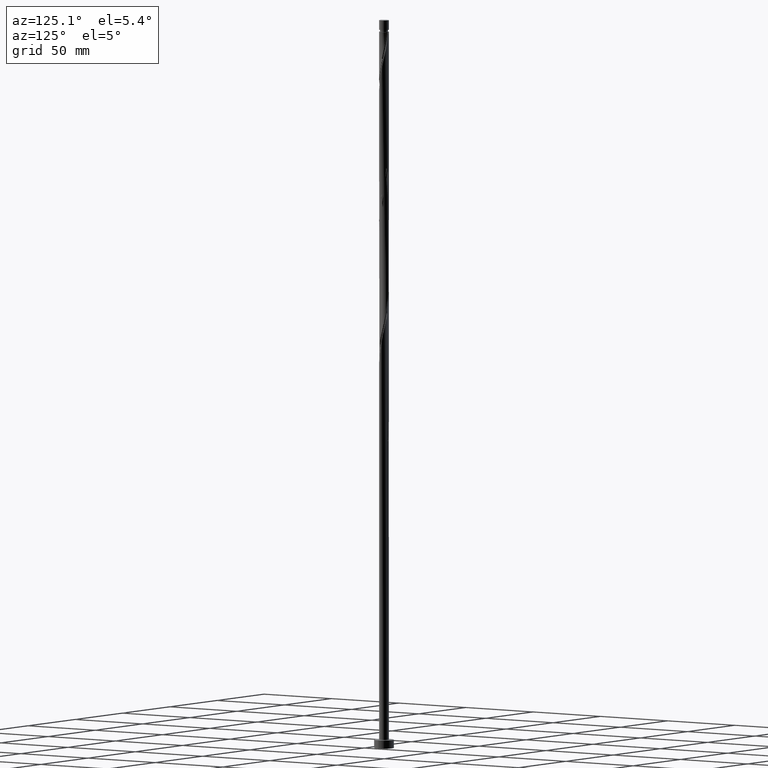
[diagram: clean part render]
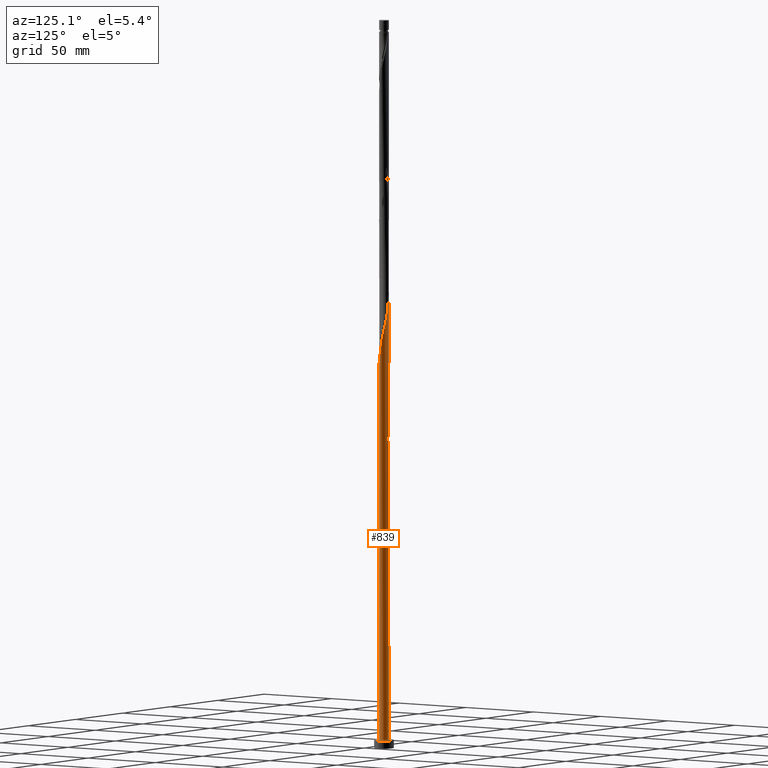
[diagram: same view with one face highlighted and labeled with its STEP entity id]
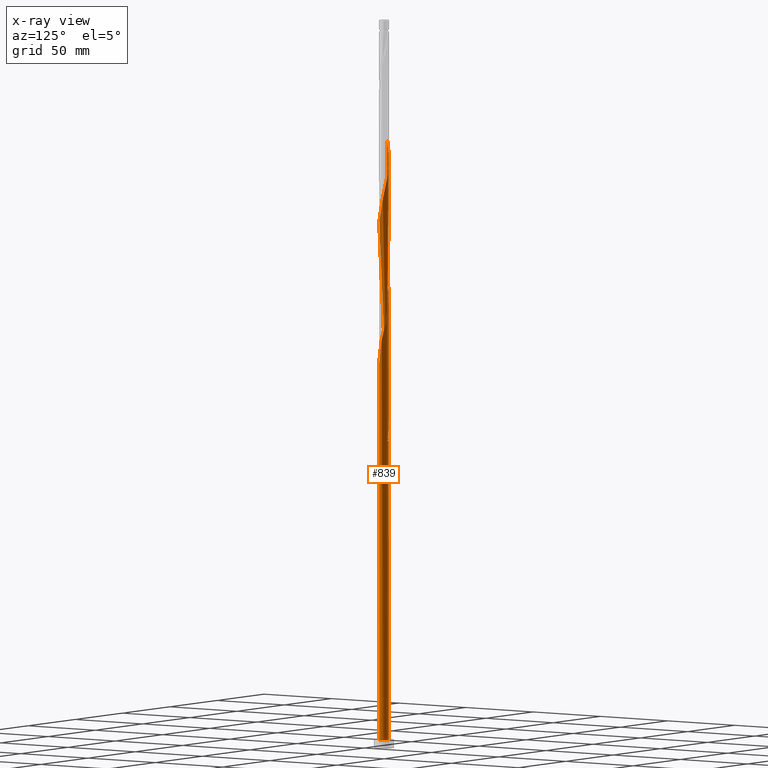
[diagram: x-ray of the same camera — body ghosted, the highlighted face saturated]
A machine part, auxiliary view. The second image highlights one B-rep face of the part: STEP entity #839.
The next image is the same camera in x-ray: the body ghosted, the highlighted face saturated — about 0% of this face is hidden behind the body in this view.
In plain terms, the highlighted cylindrical surface (bore or boss wall) has radius 3 mm, axis along (-0, -0, -1).
Its self-contained STEP definition (entity closure, byte-faithful):
#5 = CARTESIAN_POINT ( 'NONE',  ( -1.431616744321173584, 2.652881170764465946, 275.0243922367932328 ) ) ;
#15 = CARTESIAN_POINT ( 'NONE',  ( 1.159086966227607096, -2.767041272681221464, 315.3889755701264903 ) ) ;
#23 = CARTESIAN_POINT ( 'NONE',  ( -0.5735401742041613682, -2.944664950138451864, 307.5764755701264335 ) ) ;
#31 = ORIENTED_EDGE ( 'NONE', *, *, #139, .F. ) ;
#33 = CARTESIAN_POINT ( 'NONE',  ( -1.136995393931462539, -2.776191901540430607, 304.9723089034597479 ) ) ;
#41 = CARTESIAN_POINT ( 'NONE',  ( 0.5735401742041630335, 2.944664950138451420, 265.9098089034598047 ) ) ;
#62 = CARTESIAN_POINT ( 'NONE',  ( 2.940000000000004832, 0.5969924622639757317, 333.6181422367931759 ) ) ;
#66 = CARTESIAN_POINT ( 'NONE',  ( -1.410426430302971657, 2.664207629581484937, 196.8993922367931475 ) ) ;
#71 = CARTESIAN_POINT ( 'NONE',  ( -2.776191901540429718, 1.136995393931462761, 367.4723089034599184 ) ) ;
#81 = CARTESIAN_POINT ( 'NONE',  ( -1.676638408102570255, 2.487746701027922835, 192.9931422367931475 ) ) ;
#86 = LINE ( 'NONE', #1002, #683 ) ;
#88 = CARTESIAN_POINT ( 'NONE',  ( 3.001153726777531894, -0.2835159908483709801, 329.7118922367932328 ) ) ;
#96 = CARTESIAN_POINT ( 'NONE',  ( -2.501031355072564466, 1.656756518304340897, 364.8681422367932328 ) ) ;
#108 = CARTESIAN_POINT ( 'NONE',  ( -2.881201374597976539, -0.8865571881340396088, 209.9202255701265187 ) ) ;
#127 = CARTESIAN_POINT ( 'NONE',  ( -1.903086606305707917, -2.337855080563639998, 217.7327255701264619 ) ) ;
#139 = EDGE_CURVE ( 'NONE', #1731, #1449, #86, .T. ) ;
#156 = CARTESIAN_POINT ( 'NONE',  ( 0.2835159908483712576, 3.001153726777531894, 267.2118922367931191 ) ) ;
#164 = CARTESIAN_POINT ( 'NONE',  ( 1.903086606305707251, 2.337855080563640886, 259.3993922367931191 ) ) ;
#174 = CARTESIAN_POINT ( 'NONE',  ( 2.999976176089782065, 0.01195587277276977979, 247.6806422367932043 ) ) ;
#183 = CARTESIAN_POINT ( 'NONE',  ( -1.656756518304340897, -2.501031355072564466, 302.3681422367932328 ) ) ;
#192 = CARTESIAN_POINT ( 'NONE',  ( 0.8865571881340394977, -2.881201374597976539, 314.0868922367931191 ) ) ;
#202 = CARTESIAN_POINT ( 'NONE',  ( 2.776191901540429718, -1.136995393931462761, 325.8056422367931759 ) ) ;
#208 = CIRCLE ( 'NONE', #1143, 3.000000000000000444 ) ;
#224 = CARTESIAN_POINT ( 'NONE',  ( -0.5969924622639755096, 2.940000000000004832, 354.4514755701264903 ) ) ;
#235 = DIRECTION ( 'NONE',  ( -0.000000000000000000, -0.000000000000000000, -1.000000000000000000 ) ) ;
#240 = CARTESIAN_POINT ( 'NONE',  ( -3.000000000000005329, 1.708200142010639410E-15, 205.9612785921296449 ) ) ;
#253 = CARTESIAN_POINT ( 'NONE',  ( -2.664207629581487602, 1.410426430302974099, 199.5035589034598047 ) ) ;
#257 =( BOUNDED_CURVE ( )  B_SPLINE_CURVE ( 2, ( #1958, #600, #887, #291, #1518, #108, #1949, #264, #1362, #1482, #272, #127, #1341, #408, #1219, #438, #1825, #571, #759, #1228, #1198, #1833, #283, #1502, #582, #894, #1549, #1675, #1853, #1102, #768, #1236, #618, #1561, #174, #1112, #638, #1421, #456, #473, #1704, #1248, #953, #164, #1389, #1715, #1264, #647, #41, #156, #1872, #1275, #1862, #628, #1403, #5, #1697, #309, #912, #465, #445, #1568, #799, #921, #1538, #482, #779, #1685, #325, #1396, #340, #1529, #609, #1073, #1412, #1842, #183, #1255, #33, #1083, #23, #332, #944, #790, #316, #192, #15, #808, #1094, #931, #981, #1307, #1881, #386, #202, #1003, #500, #88, #1743, #1588, #62, #1120, #525, #819, #660, #671, #994, #1598, #535, #696, #857, #1890, #1912, #1154, #357, #1608, #224, #489, #1130, #971, #1617, #1471, #1577, #1316, #96, #1754, #71, #838, #1432, #1144, #1724 ),
 .UNSPECIFIED., .F., .T. ) 
 B_SPLINE_CURVE_WITH_KNOTS ( ( 3, 2, 2, 2, 2, 2, 2, 2, 2, 2, 2, 2, 2, 2, 2, 2, 2, 2, 2, 2, 2, 2, 2, 2, 2, 2, 2, 2, 2, 2, 2, 2, 2, 2, 2, 2, 2, 2, 2, 2, 2, 2, 2, 2, 2, 2, 2, 2, 2, 2, 2, 2, 2, 2, 2, 2, 2, 2, 2, 2, 2, 2, 2, 2, 2, 3 ),
 ( 0.05452869021808704614, 0.05468750000000000000, 0.06250000000000000000, 0.07031250000000000000, 0.07812500000000000000, 0.08593750000000000000, 0.09375000000000000000, 0.1015625000000000000, 0.1093750000000000000, 0.1171875000000000000, 0.1250000000000000000, 0.1328125000000000000, 0.1406250000000000000, 0.1484375000000000000, 0.1562500000000000000, 0.1640625000000000000, 0.1718750000000000000, 0.1796875000000000000, 0.1875000000000000000, 0.1953125000000000000, 0.2031250000000000000, 0.2109375000000000000, 0.2187500000000000000, 0.2265625000000000000, 0.2343750000000000000, 0.2421875000000000000, 0.2500000000000000000, 0.2578125000000000000, 0.2656250000000000000, 0.2734375000000000000, 0.2812500000000000000, 0.2890625000000000000, 0.2968750000000000000, 0.3046875000000000000, 0.3125000000000000000, 0.3203125000000000000, 0.3281250000000000000, 0.3359375000000000000, 0.3437500000000000000, 0.3515625000000000000, 0.3593750000000000000, 0.3671875000000000000, 0.3750000000000000000, 0.3828125000000000000, 0.3906250000000000000, 0.3984375000000000000, 0.4062500000000000000, 0.4140625000000000000, 0.4218750000000000000, 0.4296875000000000000, 0.4375000000000000000, 0.4453125000000000000, 0.4531250000000000000, 0.4609375000000000000, 0.4687500000000000000, 0.4765625000000000000, 0.4843750000000000000, 0.4921875000000000000, 0.5000000000000000000, 0.5078125000000000000, 0.5156250000000000000, 0.5234375000000000000, 0.5312500000000000000, 0.5390625000000000000, 0.5468750000000000000, 0.5545286902180872612 ),
 .UNSPECIFIED. ) 
 CURVE ( )  GEOMETRIC_REPRESENTATION_ITEM ( )  RATIONAL_B_SPLINE_CURVE ( ( 0.9089165573359739847, 0.9090019243628788548, 0.9090909090909707890, 0.9047133878838768961, 0.9090909090909707890, 0.9047133878838768961, 0.9090909090909707890, 0.9047133878838768961, 0.9090909090909707890, 0.9047133878838768961, 0.9090909090909707890, 0.9047133878838768961, 0.9090909090909707890, 0.9047133878838768961, 0.9090909090909707890, 0.9047133878838768961, 0.9090909090909707890, 0.9047133878838768961, 0.9090909090909707890, 0.9047133878838768961, 0.9090909090909707890, 0.9047133878838768961, 0.9090909090909707890, 0.9047133878838768961, 0.9090909090909707890, 0.9047133878838768961, 0.9090909090909707890, 0.9047133878838768961, 0.9090909090909707890, 0.9047133878838768961, 0.9090909090909707890, 0.9047133878838768961, 0.9090909090909707890, 0.9047133878838768961, 0.9090909090909707890, 0.9047133878838768961, 0.9090909090909707890, 0.9047133878838768961, 0.9090909090909707890, 0.9047133878838768961, 0.9090909090909707890, 0.9047133878838768961, 0.9090909090909707890, 0.9047133878838768961, 0.9090909090909707890, 0.9047133878838768961, 0.9090909090909707890, 0.9047133878838768961, 0.9090909090909707890, 0.9047133878838768961, 0.9090909090909707890, 0.9047133878838768961, 0.9090909090909707890, 0.9047133878838768961, 0.9090909090909707890, 0.9047133878838768961, 0.9090909090909707890, 0.9047133878838768961, 0.9090909090909707890, 0.9047133878838768961, 0.9090909090909707890, 0.9047133878838768961, 0.9090909090909707890, 0.9047133878838768961, 0.9090909090909707890, 0.9047133878838768961, 0.9090909090909707890, 0.9047133878838768961, 0.9090909090909707890, 0.9047133878838768961, 0.9090909090909707890, 0.9047133878838768961, 0.9090909090909707890, 0.9047133878838768961, 0.9090909090909707890, 0.9047133878838768961, 0.9090909090909707890, 0.9047133878838768961, 0.9090909090909707890, 0.9047133878838768961, 0.9090909090909707890, 0.9047133878838768961, 0.9090909090909707890, 0.9047133878838768961, 0.9090909090909707890, 0.9047133878838768961, 0.9090909090909707890, 0.9047133878838768961, 0.9090909090909707890, 0.9047133878838768961, 0.9090909090909707890, 0.9047133878838768961, 0.9090909090909707890, 0.9047133878838768961, 0.9090909090909707890, 0.9047133878838768961, 0.9090909090909707890, 0.9047133878838768961, 0.9090909090909707890, 0.9047133878838768961, 0.9090909090909707890, 0.9047133878838768961, 0.9090909090909707890, 0.9047133878838768961, 0.9090909090909707890, 0.9047133878838768961, 0.9090909090909707890, 0.9047133878838768961, 0.9090909090909707890, 0.9047133878838768961, 0.9090909090909707890, 0.9047133878838768961, 0.9090909090909707890, 0.9047133878838768961, 0.9090909090909707890, 0.9047133878838768961, 0.9090909090909707890, 0.9047133878838768961, 0.9090909090909707890, 0.9047133878838768961, 0.9090909090909707890, 0.9047133878838768961, 0.9090909090909707890, 0.9047133878838768961, 0.9090909090909707890, 0.9047133878838768961, 0.9090909090909707890, 0.9047133878838768961, 0.9090909090909707890, 0.9048023726119687193, 0.9089165573359742067 ) ) 
 REPRESENTATION_ITEM ( '' )  );
#264 = CARTESIAN_POINT ( 'NONE',  ( -2.652881170764465946, -1.431616744321173362, 212.5243922367931475 ) ) ;
#272 = CARTESIAN_POINT ( 'NONE',  ( -2.112849418798544043, -2.129757576223802129, 216.4306422367931191 ) ) ;
#283 = CARTESIAN_POINT ( 'NONE',  ( 1.159086966227607096, -2.767041272681221464, 232.0556422367932043 ) ) ;
#291 = CARTESIAN_POINT ( 'NONE',  ( -2.998798625402031348, -0.3074277363939123542, 207.3160589034598047 ) ) ;
#309 = CARTESIAN_POINT ( 'NONE',  ( -1.921660071883965593, 2.322612231291377949, 277.6285589034598047 ) ) ;
#316 = CARTESIAN_POINT ( 'NONE',  ( 0.5969924622639760647, -2.940000000000004832, 312.7848089034598047 ) ) ;
#323 = VERTEX_POINT ( 'NONE', #908 ) ;
#325 = CARTESIAN_POINT ( 'NONE',  ( -2.940000000000004832, -0.5969924622639761758, 291.9514755701265472 ) ) ;
#332 = CARTESIAN_POINT ( 'NONE',  ( -0.2835159908483708691, -3.001153726777531894, 308.8785589034598047 ) ) ;
#336 = FACE_OUTER_BOUND ( 'NONE', #1761, .T. ) ;
#340 = CARTESIAN_POINT ( 'NONE',  ( -2.767041272681221464, -1.159086966227606652, 294.5556422367931191 ) ) ;
#346 = ORIENTED_EDGE ( 'NONE', *, *, #1919, .T. ) ;
#357 = CARTESIAN_POINT ( 'NONE',  ( -0.01195587277276956815, 2.999976176089782065, 351.8473089034598047 ) ) ;
#360 = CARTESIAN_POINT ( 'NONE',  ( -1.921660071883965593, 2.322612231291377949, 194.2952255701264903 ) ) ;
#386 = CARTESIAN_POINT ( 'NONE',  ( 2.664207629581487602, -1.410426430302975209, 324.5035589034598047 ) ) ;
#404 = CARTESIAN_POINT ( 'NONE',  ( -2.652881170764462393, 1.431616744321172474, 204.7118922367931759 ) ) ;
#408 = CARTESIAN_POINT ( 'NONE',  ( -1.410426430302974099, -2.664207629581488046, 220.3368922367932043 ) ) ;
#424 = CARTESIAN_POINT ( 'NONE',  ( -1.903086606305704365, 2.337855080563637777, 199.5035589034599184 ) ) ;
#428 = DIRECTION ( 'NONE',  ( 1.000000000000000000, 0.000000000000000000, 0.000000000000000000 ) ) ;
#438 = CARTESIAN_POINT ( 'NONE',  ( -0.8635643575599516453, -2.888176173499370503, 222.9410589034598047 ) ) ;
#445 = CARTESIAN_POINT ( 'NONE',  ( -2.501031355072564466, 1.656756518304340897, 281.5348089034598047 ) ) ;
#456 = CARTESIAN_POINT ( 'NONE',  ( 2.767041272681221464, 1.159086966227607096, 252.8889755701265187 ) ) ;
#465 = CARTESIAN_POINT ( 'NONE',  ( -2.337855080563640886, 1.903086606305707473, 280.2327255701264903 ) ) ;
#473 = CARTESIAN_POINT ( 'NONE',  ( 2.652881170764465946, 1.431616744321172696, 254.1910589034597763 ) ) ;
#480 = ORIENTED_EDGE ( 'NONE', *, *, #1819, .F. ) ;
#482 = CARTESIAN_POINT ( 'NONE',  ( -3.001153726777531894, 0.2835159908483705360, 288.0452255701264903 ) ) ;
#489 = CARTESIAN_POINT ( 'NONE',  ( -0.8865571881340394977, 2.881201374597976539, 355.7535589034598047 ) ) ;
#494 = DIRECTION ( 'NONE',  ( 0.000000000000000000, 0.000000000000000000, 1.000000000000000000 ) ) ;
#500 = CARTESIAN_POINT ( 'NONE',  ( 2.944664950138451420, -0.5735401742041628115, 328.4098089034598615 ) ) ;
#509 = ORIENTED_EDGE ( 'NONE', *, *, #1677, .F. ) ;
#525 = CARTESIAN_POINT ( 'NONE',  ( 2.767041272681221464, 1.159086966227607096, 336.2223089034598047 ) ) ;
#528 = CARTESIAN_POINT ( 'NONE',  ( -3.000000000000000444, 0.000000000000000000, 444.8000000000000114 ) ) ;
#535 = CARTESIAN_POINT ( 'NONE',  ( 1.656756518304340897, 2.501031355072564022, 344.0348089034598047 ) ) ;
#541 = VERTEX_POINT ( 'NONE', #655 ) ;
#548 = CARTESIAN_POINT ( 'NONE',  ( -2.888176173499370503, 0.8635643575599516453, 202.1077255701264903 ) ) ;
#561 = CARTESIAN_POINT ( 'NONE',  ( 0.000000000000000000, 0.000000000000000000, 5.000000000000000000 ) ) ;
#567 = CARTESIAN_POINT ( 'NONE',  ( -1.159086966227606652, 2.767041272681221464, 190.3889755701265187 ) ) ;
#571 = CARTESIAN_POINT ( 'NONE',  ( -0.2835159908483708691, -3.001153726777531894, 225.5452255701264903 ) ) ;
#577 = CARTESIAN_POINT ( 'NONE',  ( -2.322612231291373952, 1.921660071883963150, 202.1077255701264903 ) ) ;
#582 = CARTESIAN_POINT ( 'NONE',  ( 1.676638408102569588, -2.487746701027922835, 234.6598089034598331 ) ) ;
#600 = CARTESIAN_POINT ( 'NONE',  ( -3.000000000000005329, -0.005977960122778198243, 205.9876321466469449 ) ) ;
#604 = DIRECTION ( 'NONE',  ( -0.000000000000000000, -0.000000000000000000, -1.000000000000000000 ) ) ;
#609 = CARTESIAN_POINT ( 'NONE',  ( -2.487746701027922835, -1.676638408102569811, 297.1598089034598047 ) ) ;
#618 = CARTESIAN_POINT ( 'NONE',  ( 2.944664950138451420, -0.5735401742041628115, 245.0764755701265187 ) ) ;
#628 = CARTESIAN_POINT ( 'NONE',  ( -0.8865571881340394977, 2.881201374597976539, 272.4202255701264903 ) ) ;
#638 = CARTESIAN_POINT ( 'NONE',  ( 2.940000000000004832, 0.5969924622639757317, 250.2848089034598331 ) ) ;
#646 = AXIS2_PLACEMENT_3D ( 'NONE', #1385, #604, #1693 ) ;
#647 = CARTESIAN_POINT ( 'NONE',  ( 0.8635643575599522004, 2.888176173499370503, 264.6077255701264903 ) ) ;
#653 = CARTESIAN_POINT ( 'NONE',  ( -0.5735401742041597029, 2.944664950138446091, 192.9931422367931475 ) ) ;
#655 = CARTESIAN_POINT ( 'NONE',  ( 0.5969924622639766199, 2.939999999999999947, 187.7848089034598331 ) ) ;
#660 = CARTESIAN_POINT ( 'NONE',  ( 2.487746701027922391, 1.676638408102570699, 338.8264755701265472 ) ) ;
#671 = CARTESIAN_POINT ( 'NONE',  ( 2.322612231291377949, 1.921660071883965148, 340.1285589034598615 ) ) ;
#676 = CARTESIAN_POINT ( 'NONE',  ( -1.656756518304338011, 2.501031355072560469, 198.2014755701264903 ) ) ;
#683 = VECTOR ( 'NONE', #235, 1000.000000000000000 ) ;
#687 = CARTESIAN_POINT ( 'NONE',  ( -2.501031355072564466, 1.656756518304340897, 198.2014755701264903 ) ) ;
#696 = CARTESIAN_POINT ( 'NONE',  ( 1.410426430302975431, 2.664207629581486270, 345.3368922367931191 ) ) ;
#699 = CARTESIAN_POINT ( 'NONE',  ( -2.337855080563640886, 1.903086606305707473, 196.8993922367931759 ) ) ;
#702 = VERTEX_POINT ( 'NONE', #1354 ) ;
#707 = DIRECTION ( 'NONE',  ( -1.000000000000000000, 0.000000000000000000, 0.000000000000000000 ) ) ;
#712 = CARTESIAN_POINT ( 'NONE',  ( -2.999999999999999556, -8.340638991268588486E-16, 211.2750058814566501 ) ) ;
#745 = CARTESIAN_POINT ( 'NONE',  ( -0.5969924622639756207, 2.940000000000004832, 187.7848089034598331 ) ) ;
#749 = DIRECTION ( 'NONE',  ( 0.000000000000000000, 0.000000000000000000, 1.000000000000000000 ) ) ;
#759 = CARTESIAN_POINT ( 'NONE',  ( 0.01195587277277009725, -2.999976176089782065, 226.8473089034597763 ) ) ;
#768 = CARTESIAN_POINT ( 'NONE',  ( 2.776191901540429718, -1.136995393931462761, 242.4723089034598615 ) ) ;
#775 = CARTESIAN_POINT ( 'NONE',  ( 0.000000000000000000, 0.000000000000000000, 5.000000000000000000 ) ) ;
#779 = CARTESIAN_POINT ( 'NONE',  ( -2.999976176089782065, -0.01195587277277084318, 289.3473089034598615 ) ) ;
#786 = AXIS2_PLACEMENT_3D ( 'NONE', #775, #494, #1091 ) ;
#790 = CARTESIAN_POINT ( 'NONE',  ( 0.3074277363939121877, -2.998798625402031348, 311.4827255701264335 ) ) ;
#799 = CARTESIAN_POINT ( 'NONE',  ( -2.776191901540429718, 1.136995393931462761, 284.1389755701264903 ) ) ;
#808 = CARTESIAN_POINT ( 'NONE',  ( 1.431616744321173140, -2.652881170764465946, 316.6910589034598047 ) ) ;
#819 = CARTESIAN_POINT ( 'NONE',  ( 2.652881170764465946, 1.431616744321172696, 337.5243922367931759 ) ) ;
#822 = CARTESIAN_POINT ( 'NONE',  ( -3.000000000000000444, 0.000000000000000000, 5.000000000000000000 ) ) ;
#838 = CARTESIAN_POINT ( 'NONE',  ( -2.888176173499370503, 0.8635643575599516453, 368.7743922367931191 ) ) ;
#839 = ADVANCED_FACE ( 'NONE', ( #336 ), #949, .T. ) ;
#855 = CARTESIAN_POINT ( 'NONE',  ( -0.5969924622639756207, 2.940000000000004832, 187.7848089034598331 ) ) ;
#857 = CARTESIAN_POINT ( 'NONE',  ( 1.136995393931462761, 2.776191901540429718, 346.6389755701265472 ) ) ;
#871 = ORIENTED_EDGE ( 'NONE', *, *, #1534, .T. ) ;
#878 = VECTOR ( 'NONE', #1465, 1000.000000000000000 ) ;
#887 = CARTESIAN_POINT ( 'NONE',  ( -2.999976176089782065, -0.01195587277277084318, 206.0139755701264903 ) ) ;
#894 = CARTESIAN_POINT ( 'NONE',  ( 1.921660071883965593, -2.322612231291377949, 235.9618922367931475 ) ) ;
#908 = CARTESIAN_POINT ( 'NONE',  ( -3.000000000000005329, 1.708200142010639410E-15, 372.6279452587962737 ) ) ;
#912 = CARTESIAN_POINT ( 'NONE',  ( -2.129757576223803017, 2.112849418798543155, 278.9306422367931191 ) ) ;
#921 = CARTESIAN_POINT ( 'NONE',  ( -2.888176173499370503, 0.8635643575599516453, 285.4410589034598047 ) ) ;
#927 =( BOUNDED_CURVE ( )  B_SPLINE_CURVE ( 2, ( #745, #1358, #567, #1193, #81, #360, #1746, #699, #687, #253, #1770, #548, #1591, #1612, #240 ),
 .UNSPECIFIED., .F., .T. ) 
 B_SPLINE_CURVE_WITH_KNOTS ( ( 3, 2, 2, 2, 2, 2, 2, 3 ),
 ( 0.000000000000000000, 0.007812500000000000000, 0.01562500000000000000, 0.02343750000000000000, 0.03125000000000000000, 0.03906250000000000000, 0.04687500000000000000, 0.05452869021808704614 ),
 .UNSPECIFIED. ) 
 CURVE ( )  GEOMETRIC_REPRESENTATION_ITEM ( )  RATIONAL_B_SPLINE_CURVE ( ( 0.9090909090909707890, 0.9047133878838768961, 0.9090909090909707890, 0.9047133878838768961, 0.9090909090909707890, 0.9047133878838768961, 0.9090909090909707890, 0.9047133878838768961, 0.9090909090909707890, 0.9047133878838768961, 0.9090909090909707890, 0.9047133878838768961, 0.9090909090909707890, 0.9048023726119688304, 0.9089165573359739847 ) ) 
 REPRESENTATION_ITEM ( '' )  );
#931 = CARTESIAN_POINT ( 'NONE',  ( 1.921660071883965593, -2.322612231291377949, 319.2952255701264903 ) ) ;
#944 = CARTESIAN_POINT ( 'NONE',  ( 0.01195587277277009725, -2.999976176089782065, 310.1806422367931191 ) ) ;
#949 = CYLINDRICAL_SURFACE ( 'NONE', #646, 3.000000000000000444 ) ;
#953 = CARTESIAN_POINT ( 'NONE',  ( 2.112849418798544487, 2.129757576223802129, 258.0973089034598047 ) ) ;
#971 = CARTESIAN_POINT ( 'NONE',  ( -1.431616744321173584, 2.652881170764465946, 358.3577255701264903 ) ) ;
#979 = VERTEX_POINT ( 'NONE', #855 ) ;
#981 = CARTESIAN_POINT ( 'NONE',  ( 2.129757576223802129, -2.112849418798544487, 320.5973089034598615 ) ) ;
#994 = CARTESIAN_POINT ( 'NONE',  ( 2.112849418798544487, 2.129757576223802129, 341.4306422367931759 ) ) ;
#1002 = CARTESIAN_POINT ( 'NONE',  ( -3.000000000000000444, 0.000000000000000000, 444.8000000000000114 ) ) ;
#1003 = CARTESIAN_POINT ( 'NONE',  ( 2.888176173499370503, -0.8635643575599518673, 327.1077255701264903 ) ) ;
#1010 = CIRCLE ( 'NONE', #1429, 3.000000000000000444 ) ;
#1038 = CARTESIAN_POINT ( 'NONE',  ( -2.487746701027918395, 1.676638408102567368, 203.4098089034598047 ) ) ;
#1068 = CARTESIAN_POINT ( 'NONE',  ( -0.8635643575599494248, 2.888176173499368282, 194.2952255701265472 ) ) ;
#1073 = CARTESIAN_POINT ( 'NONE',  ( -2.322612231291377949, -1.921660071883965593, 298.4618922367931191 ) ) ;
#1083 = CARTESIAN_POINT ( 'NONE',  ( -0.8635643575599516453, -2.888176173499370503, 306.2743922367932328 ) ) ;
#1091 = DIRECTION ( 'NONE',  ( 1.000000000000000000, 0.000000000000000000, 0.000000000000000000 ) ) ;
#1094 = CARTESIAN_POINT ( 'NONE',  ( 1.676638408102569588, -2.487746701027922835, 317.9931422367931759 ) ) ;
#1102 = CARTESIAN_POINT ( 'NONE',  ( 2.664207629581487602, -1.410426430302975209, 241.1702255701264903 ) ) ;
#1112 = CARTESIAN_POINT ( 'NONE',  ( 2.998798625402031792, 0.3074277363939135199, 248.9827255701264903 ) ) ;
#1120 = CARTESIAN_POINT ( 'NONE',  ( 2.881201374597976539, 0.8865571881340381655, 334.9202255701264335 ) ) ;
#1124 = CARTESIAN_POINT ( 'NONE',  ( 0.5969924622639766199, 2.939999999999999947, 187.7848089034598331 ) ) ;
#1130 = CARTESIAN_POINT ( 'NONE',  ( -1.159086966227606652, 2.767041272681221464, 357.0556422367931759 ) ) ;
#1143 = AXIS2_PLACEMENT_3D ( 'NONE', #1435, #1310, #707 ) ;
#1144 = CARTESIAN_POINT ( 'NONE',  ( -3.000000000000004441, 0.2894394447869411136, 371.3519651533802630 ) ) ;
#1154 = CARTESIAN_POINT ( 'NONE',  ( 0.2835159908483712576, 3.001153726777531894, 350.5452255701264903 ) ) ;
#1181 = ORIENTED_EDGE ( 'NONE', *, *, #1440, .F. ) ;
#1182 = CARTESIAN_POINT ( 'NONE',  ( -2.999976176089776736, 0.01195587277277169493, 211.2223089034598615 ) ) ;
#1190 = ORIENTED_EDGE ( 'NONE', *, *, #1560, .T. ) ;
#1193 = CARTESIAN_POINT ( 'NONE',  ( -1.431616744321173584, 2.652881170764465946, 191.6910589034597763 ) ) ;
#1198 = CARTESIAN_POINT ( 'NONE',  ( 0.5969924622639760647, -2.940000000000004832, 229.4514755701265187 ) ) ;
#1203 = CARTESIAN_POINT ( 'NONE',  ( -2.112849418798539602, 2.129757576223800353, 200.8056422367931191 ) ) ;
#1207 = CARTESIAN_POINT ( 'NONE',  ( -2.999999999999999556, -8.340638991268588486E-16, 211.2750058814566501 ) ) ;
#1219 = CARTESIAN_POINT ( 'NONE',  ( -1.136995393931462539, -2.776191901540430607, 221.6389755701265187 ) ) ;
#1228 = CARTESIAN_POINT ( 'NONE',  ( 0.3074277363939121877, -2.998798625402031348, 228.1493922367931475 ) ) ;
#1236 = CARTESIAN_POINT ( 'NONE',  ( 2.888176173499370503, -0.8635643575599518673, 243.7743922367931759 ) ) ;
#1248 = CARTESIAN_POINT ( 'NONE',  ( 2.322612231291377949, 1.921660071883965148, 256.7952255701264903 ) ) ;
#1255 = CARTESIAN_POINT ( 'NONE',  ( -1.410426430302974099, -2.664207629581488046, 303.6702255701264335 ) ) ;
#1262 = ORIENTED_EDGE ( 'NONE', *, *, #1323, .F. ) ;
#1264 = CARTESIAN_POINT ( 'NONE',  ( 1.136995393931462761, 2.776191901540429718, 263.3056422367931191 ) ) ;
#1275 = CARTESIAN_POINT ( 'NONE',  ( -0.3074277363939132424, 2.998798625402031792, 269.8160589034598047 ) ) ;
#1298 = LINE ( 'NONE', #528, #878 ) ;
#1300 = CARTESIAN_POINT ( 'NONE',  ( -1.136995393931460541, 2.776191901540425278, 195.5973089034598047 ) ) ;
#1307 = CARTESIAN_POINT ( 'NONE',  ( 2.337855080563639554, -1.903086606305708139, 321.8993922367932896 ) ) ;
#1310 = DIRECTION ( 'NONE',  ( 0.000000000000000000, -0.000000000000000000, -1.000000000000000000 ) ) ;
#1316 = CARTESIAN_POINT ( 'NONE',  ( -2.337855080563640886, 1.903086606305707473, 363.5660589034598047 ) ) ;
#1323 = EDGE_CURVE ( 'NONE', #979, #1731, #927, .T. ) ;
#1335 = CARTESIAN_POINT ( 'NONE',  ( -2.998798625402027351, 0.3074277363939129093, 209.9202255701265472 ) ) ;
#1340 = CIRCLE ( 'NONE', #786, 3.000000000000000444 ) ;
#1341 = CARTESIAN_POINT ( 'NONE',  ( -1.656756518304340897, -2.501031355072564466, 219.0348089034598331 ) ) ;
#1354 = CARTESIAN_POINT ( 'NONE',  ( 3.000000000000000444, 0.000000000000000000, 5.000000000000000000 ) ) ;
#1358 = CARTESIAN_POINT ( 'NONE',  ( -0.8865571881340394977, 2.881201374597976539, 189.0868922367931759 ) ) ;
#1362 = CARTESIAN_POINT ( 'NONE',  ( -2.487746701027922835, -1.676638408102569811, 213.8264755701265187 ) ) ;
#1385 = CARTESIAN_POINT ( 'NONE',  ( 0.000000000000000000, 0.000000000000000000, 444.8000000000000114 ) ) ;
#1389 = CARTESIAN_POINT ( 'NONE',  ( 1.656756518304340897, 2.501031355072564022, 260.7014755701264903 ) ) ;
#1396 = CARTESIAN_POINT ( 'NONE',  ( -2.881201374597976539, -0.8865571881340396088, 293.2535589034598047 ) ) ;
#1403 = CARTESIAN_POINT ( 'NONE',  ( -1.159086966227606652, 2.767041272681221464, 273.7223089034598047 ) ) ;
#1412 = CARTESIAN_POINT ( 'NONE',  ( -2.112849418798544043, -2.129757576223802129, 299.7639755701265472 ) ) ;
#1421 = CARTESIAN_POINT ( 'NONE',  ( 2.881201374597976539, 0.8865571881340381655, 251.5868922367931759 ) ) ;
#1429 = AXIS2_PLACEMENT_3D ( 'NONE', #561, #749, #428 ) ;
#1432 = CARTESIAN_POINT ( 'NONE',  ( -2.944664950138451864, 0.5735401742041611461, 370.0764755701264903 ) ) ;
#1435 = CARTESIAN_POINT ( 'NONE',  ( 0.000000000000000000, 0.000000000000000000, 187.7848089034598900 ) ) ;
#1440 = EDGE_CURVE ( 'NONE', #323, #1615, #1298, .T. ) ;
#1449 = VERTEX_POINT ( 'NONE', #822 ) ;
#1451 = CARTESIAN_POINT ( 'NONE',  ( -3.000000000000005329, 1.708200142010639410E-15, 205.9612785921296449 ) ) ;
#1465 = DIRECTION ( 'NONE',  ( -0.000000000000000000, -0.000000000000000000, -1.000000000000000000 ) ) ;
#1471 = CARTESIAN_POINT ( 'NONE',  ( -1.921660071883965593, 2.322612231291377949, 360.9618922367931191 ) ) ;
#1482 = CARTESIAN_POINT ( 'NONE',  ( -2.322612231291377949, -1.921660071883965593, 215.1285589034598047 ) ) ;
#1485 =( BOUNDED_CURVE ( )  B_SPLINE_CURVE ( 2, ( #712, #1954, #1182, #1335, #1800, #1937, #1507, #404, #1038, #577, #1203, #424, #676, #66, #1300, #1068, #653, #1545, #1670, #1849, #1124 ),
 .UNSPECIFIED., .F., .T. ) 
 B_SPLINE_CURVE_WITH_KNOTS ( ( 3, 2, 2, 2, 2, 2, 2, 2, 2, 2, 3 ),
 ( 0.9295286902180872612, 0.9296875000000000000, 0.9375000000000000000, 0.9453125000000000000, 0.9531250000000000000, 0.9609375000000000000, 0.9687500000000000000, 0.9765625000000000000, 0.9843750000000000000, 0.9921875000000000000, 1.000000000000000000 ),
 .UNSPECIFIED. ) 
 CURVE ( )  GEOMETRIC_REPRESENTATION_ITEM ( )  RATIONAL_B_SPLINE_CURVE ( ( 0.9089165573359683226, 0.9090019243628730816, 0.9090909090909647938, 0.9047133878838706789, 0.9090909090909647938, 0.9047133878838706789, 0.9090909090909647938, 0.9047133878838706789, 0.9090909090909647938, 0.9047133878838706789, 0.9090909090909647938, 0.9047133878838706789, 0.9090909090909647938, 0.9047133878838706789, 0.9090909090909647938, 0.9047133878838706789, 0.9090909090909647938, 0.9047133878838706789, 0.9090909090909647938, 0.9047133878838706789, 0.9090909090909647938 ) ) 
 REPRESENTATION_ITEM ( '' )  );
#1502 = CARTESIAN_POINT ( 'NONE',  ( 1.431616744321173140, -2.652881170764465946, 233.3577255701264903 ) ) ;
#1507 = CARTESIAN_POINT ( 'NONE',  ( -2.767041272681216135, 1.159086966227605320, 206.0139755701264619 ) ) ;
#1518 = CARTESIAN_POINT ( 'NONE',  ( -2.940000000000004832, -0.5969924622639761758, 208.6181422367931191 ) ) ;
#1529 = CARTESIAN_POINT ( 'NONE',  ( -2.652881170764465946, -1.431616744321173362, 295.8577255701264903 ) ) ;
#1534 = EDGE_CURVE ( 'NONE', #979, #541, #208, .T. ) ;
#1538 = CARTESIAN_POINT ( 'NONE',  ( -2.944664950138451864, 0.5735401742041611461, 286.7431422367931759 ) ) ;
#1545 = CARTESIAN_POINT ( 'NONE',  ( -0.2835159908483698699, 3.001153726777527897, 191.6910589034598047 ) ) ;
#1549 = CARTESIAN_POINT ( 'NONE',  ( 2.129757576223802129, -2.112849418798544487, 237.2639755701265472 ) ) ;
#1560 = EDGE_CURVE ( 'NONE', #702, #1449, #1010, .T. ) ;
#1561 = CARTESIAN_POINT ( 'NONE',  ( 3.001153726777531894, -0.2835159908483709801, 246.3785589034597763 ) ) ;
#1568 = CARTESIAN_POINT ( 'NONE',  ( -2.664207629581487602, 1.410426430302974099, 282.8368922367931191 ) ) ;
#1577 = CARTESIAN_POINT ( 'NONE',  ( -2.129757576223803017, 2.112849418798543155, 362.2639755701264903 ) ) ;
#1588 = CARTESIAN_POINT ( 'NONE',  ( 2.998798625402031792, 0.3074277363939135199, 332.3160589034598047 ) ) ;
#1591 = CARTESIAN_POINT ( 'NONE',  ( -2.944664950138451864, 0.5735401742041611461, 203.4098089034598615 ) ) ;
#1598 = CARTESIAN_POINT ( 'NONE',  ( 1.903086606305707251, 2.337855080563640886, 342.7327255701264903 ) ) ;
#1608 = CARTESIAN_POINT ( 'NONE',  ( -0.3074277363939132424, 2.998798625402031792, 353.1493922367931759 ) ) ;
#1612 = CARTESIAN_POINT ( 'NONE',  ( -3.000000000000003109, 0.2894394447869491627, 204.6852984867136058 ) ) ;
#1615 = VERTEX_POINT ( 'NONE', #1207 ) ;
#1617 = CARTESIAN_POINT ( 'NONE',  ( -1.676638408102570255, 2.487746701027922835, 359.6598089034598047 ) ) ;
#1670 = CARTESIAN_POINT ( 'NONE',  ( 0.01195587277277158564, 2.999976176089777624, 190.3889755701264619 ) ) ;
#1675 = CARTESIAN_POINT ( 'NONE',  ( 2.337855080563639554, -1.903086606305708139, 238.5660589034598047 ) ) ;
#1677 = EDGE_CURVE ( 'NONE', #1731, #323, #257, .T. ) ;
#1685 = CARTESIAN_POINT ( 'NONE',  ( -2.998798625402031348, -0.3074277363939123542, 290.6493922367932328 ) ) ;
#1693 = DIRECTION ( 'NONE',  ( -1.000000000000000000, 0.000000000000000000, 0.000000000000000000 ) ) ;
#1697 = CARTESIAN_POINT ( 'NONE',  ( -1.676638408102570255, 2.487746701027922835, 276.3264755701264335 ) ) ;
#1704 = CARTESIAN_POINT ( 'NONE',  ( 2.487746701027922391, 1.676638408102570699, 255.4931422367932043 ) ) ;
#1715 = CARTESIAN_POINT ( 'NONE',  ( 1.410426430302975431, 2.664207629581486270, 262.0035589034598047 ) ) ;
#1724 = CARTESIAN_POINT ( 'NONE',  ( -3.000000000000005329, 1.708200142010639212E-15, 372.6279452587962737 ) ) ;
#1731 = VERTEX_POINT ( 'NONE', #1451 ) ;
#1743 = CARTESIAN_POINT ( 'NONE',  ( 2.999976176089782065, 0.01195587277276977979, 331.0139755701265472 ) ) ;
#1746 = CARTESIAN_POINT ( 'NONE',  ( -2.129757576223803017, 2.112849418798543155, 195.5973089034598900 ) ) ;
#1754 = CARTESIAN_POINT ( 'NONE',  ( -2.664207629581487602, 1.410426430302974099, 366.1702255701264903 ) ) ;
#1761 = EDGE_LOOP ( 'NONE', ( #1181, #509, #1870, #346, #1190, #31, #1262, #871, #480 ) ) ;
#1770 = CARTESIAN_POINT ( 'NONE',  ( -2.776191901540429718, 1.136995393931462761, 200.8056422367931759 ) ) ;
#1800 = CARTESIAN_POINT ( 'NONE',  ( -2.939999999999999947, 0.5969924622639759537, 208.6181422367931475 ) ) ;
#1819 = EDGE_CURVE ( 'NONE', #1615, #541, #1485, .T. ) ;
#1825 = CARTESIAN_POINT ( 'NONE',  ( -0.5735401742041613682, -2.944664950138451864, 224.2431422367931191 ) ) ;
#1833 = CARTESIAN_POINT ( 'NONE',  ( 0.8865571881340394977, -2.881201374597976539, 230.7535589034598047 ) ) ;
#1842 = CARTESIAN_POINT ( 'NONE',  ( -1.903086606305707917, -2.337855080563639998, 301.0660589034598047 ) ) ;
#1849 = CARTESIAN_POINT ( 'NONE',  ( 0.3074277363939130203, 2.998798625402027351, 189.0868922367932043 ) ) ;
#1853 = CARTESIAN_POINT ( 'NONE',  ( 2.501031355072564466, -1.656756518304340897, 239.8681422367931759 ) ) ;
#1862 = CARTESIAN_POINT ( 'NONE',  ( -0.5969924622639755096, 2.940000000000004832, 271.1181422367932328 ) ) ;
#1870 = ORIENTED_EDGE ( 'NONE', *, *, #139, .T. ) ;
#1872 = CARTESIAN_POINT ( 'NONE',  ( -0.01195587277276956815, 2.999976176089782065, 268.5139755701264903 ) ) ;
#1881 = CARTESIAN_POINT ( 'NONE',  ( 2.501031355072564466, -1.656756518304340897, 323.2014755701264903 ) ) ;
#1890 = CARTESIAN_POINT ( 'NONE',  ( 0.8635643575599522004, 2.888176173499370503, 347.9410589034597479 ) ) ;
#1912 = CARTESIAN_POINT ( 'NONE',  ( 0.5735401742041630335, 2.944664950138451420, 349.2431422367932896 ) ) ;
#1919 = EDGE_CURVE ( 'NONE', #1449, #702, #1340, .T. ) ;
#1937 = CARTESIAN_POINT ( 'NONE',  ( -2.881201374597972098, 0.8865571881340391647, 207.3160589034598615 ) ) ;
#1949 = CARTESIAN_POINT ( 'NONE',  ( -2.767041272681221464, -1.159086966227606652, 211.2223089034598331 ) ) ;
#1954 = CARTESIAN_POINT ( 'NONE',  ( -2.999999999999999556, 0.005977960122787157222, 211.2486523269393786 ) ) ;
#1958 = CARTESIAN_POINT ( 'NONE',  ( -3.000000000000005329, 1.708200142010639410E-15, 205.9612785921296449 ) ) ;